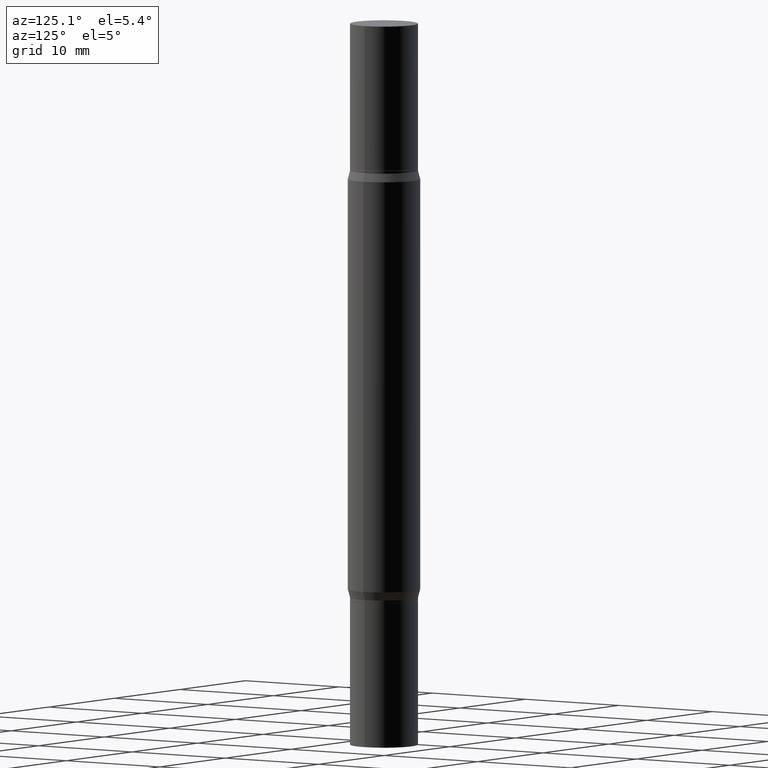
[diagram: clean part render]
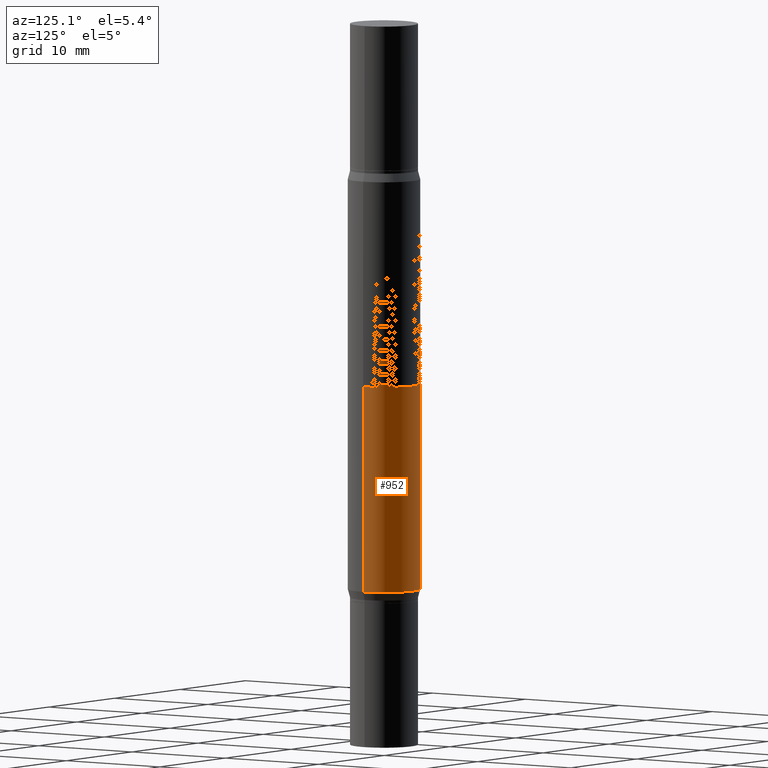
[diagram: same view with one face highlighted and labeled with its STEP entity id]
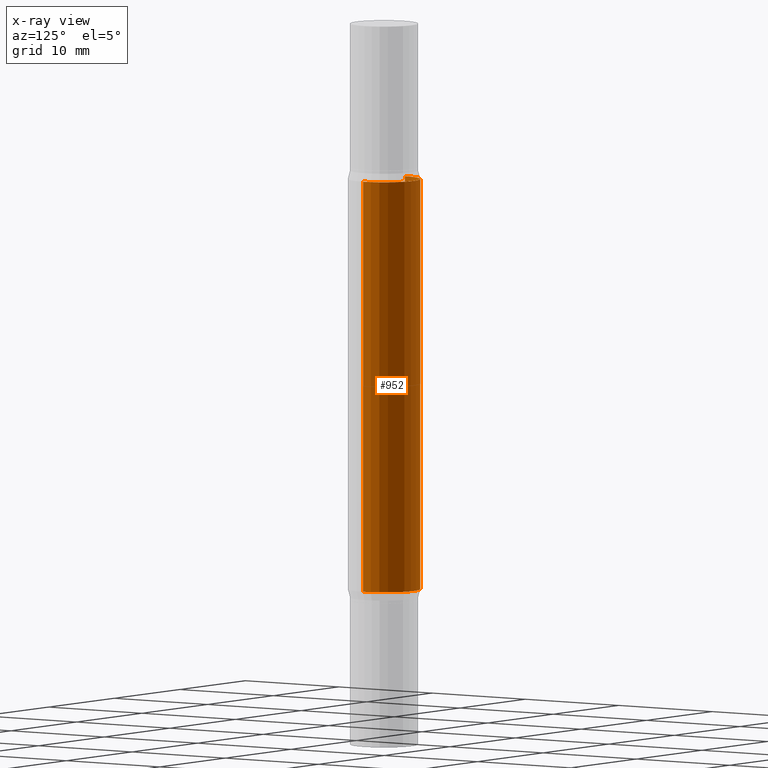
[diagram: x-ray of the same camera — body ghosted, the highlighted face saturated]
A machine part, auxiliary view. The second image highlights one B-rep face of the part: STEP entity #952.
The next image is the same camera in x-ray: the body ghosted, the highlighted face saturated — about 0% of this face is hidden behind the body in this view.
In plain terms, the highlighted cylindrical surface (edge-blend (fillet) strip) has radius 3.175 mm, axis along (-0, -0, -1).
Its self-contained STEP definition (entity closure, byte-faithful):
#14 = ORIENTED_EDGE ( 'NONE', *, *, #173, .F. ) ;
#44 = CARTESIAN_POINT ( 'NONE',  ( 4.795295336410958635E-29, -1.882062336673981410E-15, -0.5391099962990381078 ) ) ;
#126 = AXIS2_PLACEMENT_3D ( 'NONE', #139, #514, #903 ) ;
#134 = CARTESIAN_POINT ( 'NONE',  ( -0.1250000000000000000, -7.871545792533893657E-15, -2.499999999999999556 ) ) ;
#139 = CARTESIAN_POINT ( 'NONE',  ( 0.000000000000000000, -8.729108042255335103E-15, -2.499999999999999556 ) ) ;
#173 = EDGE_CURVE ( 'NONE', #630, #831, #650, .T. ) ;
#198 = LINE ( 'NONE', #863, #336 ) ;
#200 = CARTESIAN_POINT ( 'NONE',  ( 0.1250000000000000000, -2.754932671384765144E-15, -0.5391099962990381078 ) ) ;
#222 = VERTEX_POINT ( 'NONE', #200 ) ;
#223 = CYLINDRICAL_SURFACE ( 'NONE', #126, 0.1250000000000000000 ) ;
#272 = ORIENTED_EDGE ( 'NONE', *, *, #284, .T. ) ;
#282 = DIRECTION ( 'NONE',  ( 1.000000000000000000, -6.982962677686270655E-15, 0.000000000000000000 ) ) ;
#284 = EDGE_CURVE ( 'NONE', #893, #831, #586, .T. ) ;
#336 = VECTOR ( 'NONE', #501, 39.37007874015748143 ) ;
#356 = DIRECTION ( 'NONE',  ( 2.445468806185136597E-29, 3.491805094961124077E-15, 1.000000000000000000 ) ) ;
#501 = DIRECTION ( 'NONE',  ( -2.445468806185136877E-29, -3.491805094961123683E-15, -1.000000000000000000 ) ) ;
#504 = ORIENTED_EDGE ( 'NONE', *, *, #565, .F. ) ;
#514 = DIRECTION ( 'NONE',  ( -2.445468806185136597E-29, -3.491805094961124077E-15, -1.000000000000000000 ) ) ;
#565 = EDGE_CURVE ( 'NONE', #222, #630, #660, .T. ) ;
#582 = DIRECTION ( 'NONE',  ( -2.445468806185136877E-29, -3.491805094961123683E-15, -1.000000000000000000 ) ) ;
#586 = CIRCLE ( 'NONE', #822, 0.1250000000000000000 ) ;
#620 = ORIENTED_EDGE ( 'NONE', *, *, #847, .T. ) ;
#630 = VERTEX_POINT ( 'NONE', #850 ) ;
#637 = CARTESIAN_POINT ( 'NONE',  ( -0.1250000000000000000, -3.506789423832489448E-15, -1.960890003700961337 ) ) ;
#650 = LINE ( 'NONE', #134, #867 ) ;
#652 = CARTESIAN_POINT ( 'NONE',  ( 0.1250000000000000000, -7.719281190156756975E-15, -1.960890003700961337 ) ) ;
#653 = DIRECTION ( 'NONE',  ( 1.000000000000000000, -6.982962677686266711E-15, 0.000000000000000000 ) ) ;
#660 = CIRCLE ( 'NONE', #855, 0.1250000000000000000 ) ;
#664 = DIRECTION ( 'NONE',  ( -2.445468806185136597E-29, 3.491481338843145583E-15, 1.000000000000000000 ) ) ;
#744 = CARTESIAN_POINT ( 'NONE',  ( 4.795295336410958635E-29, -6.846410855445973637E-15, -1.960890003700961337 ) ) ;
#822 = AXIS2_PLACEMENT_3D ( 'NONE', #744, #664, #282 ) ;
#829 = EDGE_LOOP ( 'NONE', ( #14, #504, #620, #272 ) ) ;
#831 = VERTEX_POINT ( 'NONE', #637 ) ;
#847 = EDGE_CURVE ( 'NONE', #222, #893, #198, .T. ) ;
#850 = CARTESIAN_POINT ( 'NONE',  ( -0.1250000000000000000, -1.024500086952540162E-15, -0.5391099962990381078 ) ) ;
#855 = AXIS2_PLACEMENT_3D ( 'NONE', #44, #356, #653 ) ;
#863 = CARTESIAN_POINT ( 'NONE',  ( 0.1250000000000000000, -9.601978376966118441E-15, -2.499999999999999556 ) ) ;
#867 = VECTOR ( 'NONE', #582, 39.37007874015748143 ) ;
#891 = FACE_OUTER_BOUND ( 'NONE', #829, .T. ) ;
#893 = VERTEX_POINT ( 'NONE', #652 ) ;
#903 = DIRECTION ( 'NONE',  ( 1.000000000000000000, -6.982962677686262766E-15, 0.000000000000000000 ) ) ;
#952 = ADVANCED_FACE ( 'NONE', ( #891 ), #223, .T. ) ;